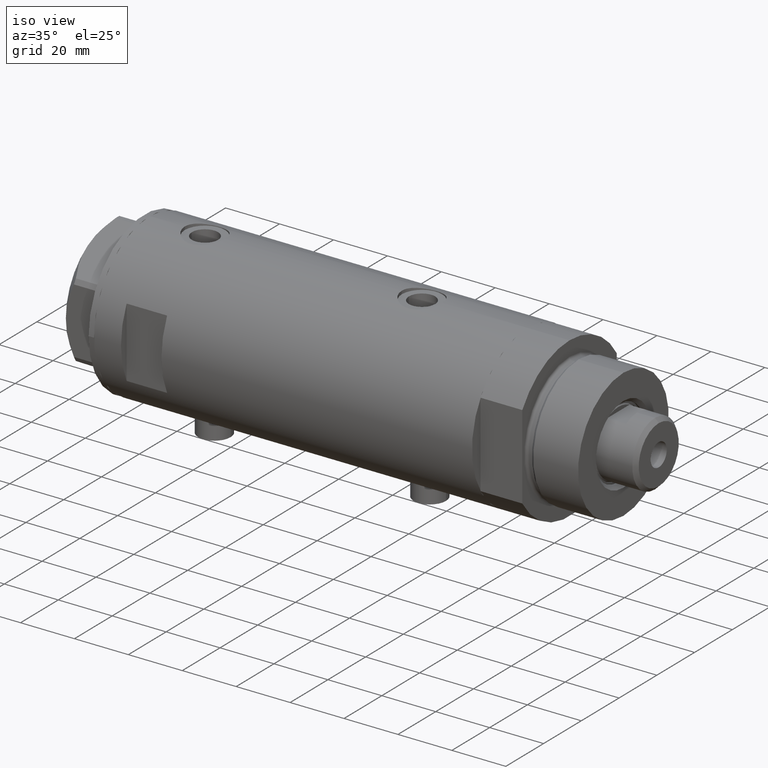
[diagram: clean part render]
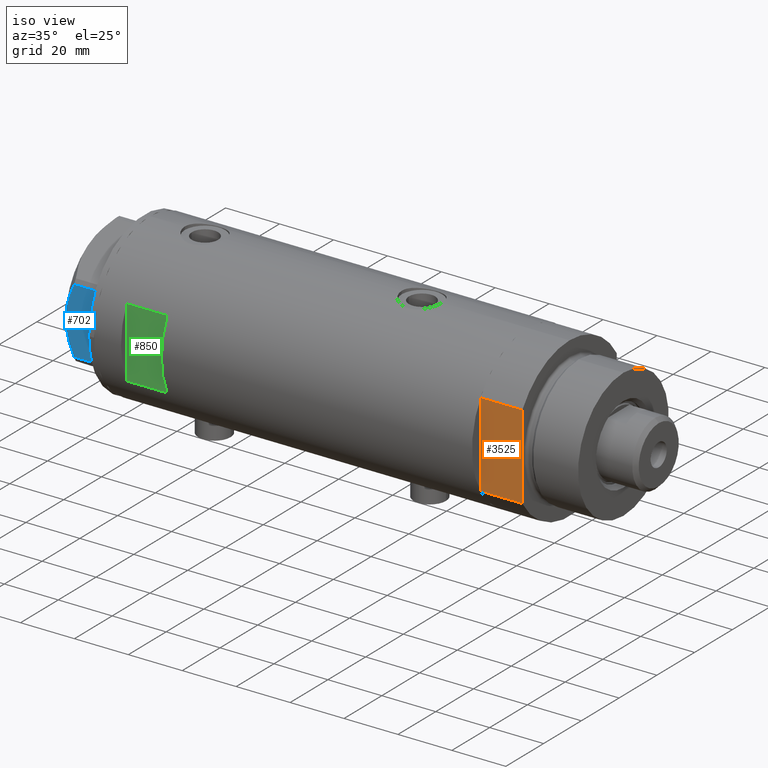
[diagram: same view with three faces highlighted in distinct colors, each labeled with its STEP entity id]
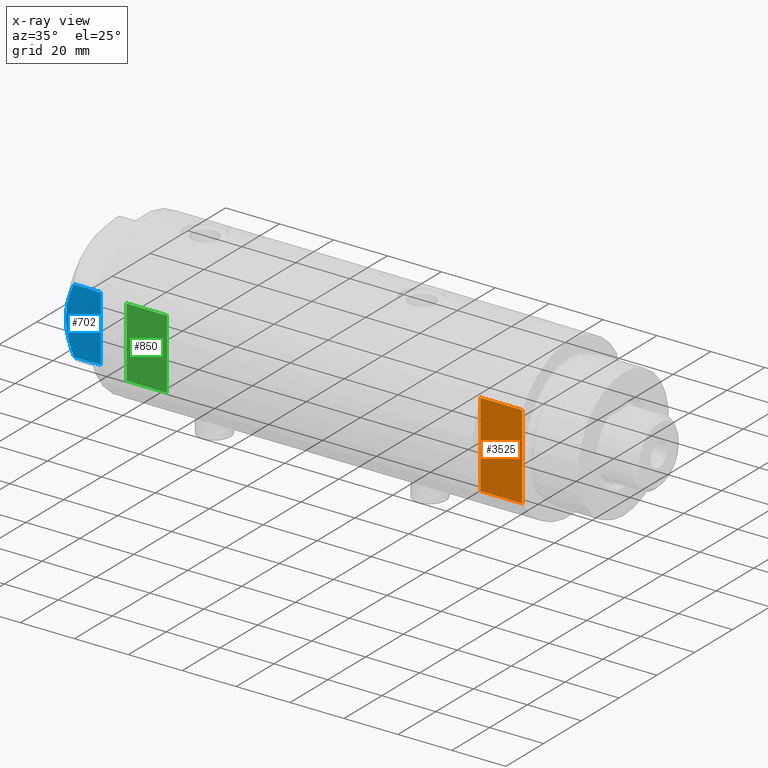
[diagram: x-ray of the same camera — body ghosted, the three highlighted faces saturated]
A machine part, iso view with three faces highlighted in distinct colors.
The next image is the same camera in x-ray (body ghosted, the three faces saturated) — at least one of them is partly hidden behind the body in this view.
Their STEP definitions:

[orange] entity #3525 — the highlighted planar face has unit normal (-0, 1, 0).
#125 = CARTESIAN_POINT ( 'NONE',  ( -7.141428428542853091, -25.00000000000000000, 0.000000000000000000 ) ) ;
#235 = ORIENTED_EDGE ( 'NONE', *, *, #3777, .F. ) ;
#293 = LINE ( 'NONE', #989, #1551 ) ;
#502 = EDGE_CURVE ( 'NONE', #4732, #3638, #293, .T. ) ;
#777 = LINE ( 'NONE', #2248, #3410 ) ;
#790 = VERTEX_POINT ( 'NONE', #3044 ) ;
#884 = DIRECTION ( 'NONE',  ( -0.000000000000000000, -0.000000000000000000, 1.000000000000000000 ) ) ;
#946 = DIRECTION ( 'NONE',  ( 0.000000000000000000, -0.000000000000000000, 1.000000000000000000 ) ) ;
#989 = CARTESIAN_POINT ( 'NONE',  ( -15.66045976336583401, -25.00000000000000000, 0.000000000000000000 ) ) ;
#1026 = ORIENTED_EDGE ( 'NONE', *, *, #3677, .T. ) ;
#1147 = DIRECTION ( 'NONE',  ( -1.000000000000000000, -0.000000000000000000, -0.000000000000000000 ) ) ;
#1428 = CARTESIAN_POINT ( 'NONE',  ( -15.66045976336583401, -25.00000000000000000, 0.000000000000000000 ) ) ;
#1490 = ORIENTED_EDGE ( 'NONE', *, *, #502, .F. ) ;
#1500 = VECTOR ( 'NONE', #884, 1000.000000000000000 ) ;
#1551 = VECTOR ( 'NONE', #4277, 1000.000000000000000 ) ;
#1714 = CARTESIAN_POINT ( 'NONE',  ( -15.66045976336582690, -25.00000000000000000, 0.000000000000000000 ) ) ;
#1752 = VERTEX_POINT ( 'NONE', #125 ) ;
#1764 = ORIENTED_EDGE ( 'NONE', *, *, #2679, .F. ) ;
#1886 = CARTESIAN_POINT ( 'NONE',  ( -15.66045976336583401, -25.00000000000000000, 15.50000000000000000 ) ) ;
#2079 = LINE ( 'NONE', #4254, #1500 ) ;
#2112 = DIRECTION ( 'NONE',  ( -0.000000000000000000, 1.000000000000000000, 0.000000000000000000 ) ) ;
#2154 = CARTESIAN_POINT ( 'NONE',  ( 15.66045976336583045, -25.00000000000000000, 15.50000000000000000 ) ) ;
#2202 = VECTOR ( 'NONE', #3283, 1000.000000000000000 ) ;
#2248 = CARTESIAN_POINT ( 'NONE',  ( -15.66045976336583401, -25.00000000000000000, 0.000000000000000000 ) ) ;
#2389 = EDGE_CURVE ( 'NONE', #790, #1752, #3372, .T. ) ;
#2473 = CARTESIAN_POINT ( 'NONE',  ( -15.66045976336583401, -25.00000000000000000, 0.000000000000000000 ) ) ;
#2479 = ORIENTED_EDGE ( 'NONE', *, *, #2586, .T. ) ;
#2540 = LINE ( 'NONE', #1886, #3346 ) ;
#2584 = VECTOR ( 'NONE', #3701, 1000.000000000000000 ) ;
#2586 = EDGE_CURVE ( 'NONE', #2942, #2785, #2079, .T. ) ;
#2679 = EDGE_CURVE ( 'NONE', #2942, #790, #2745, .T. ) ;
#2745 = LINE ( 'NONE', #1428, #2202 ) ;
#2785 = VERTEX_POINT ( 'NONE', #2154 ) ;
#2942 = VERTEX_POINT ( 'NONE', #3204 ) ;
#2974 = CARTESIAN_POINT ( 'NONE',  ( -15.66045976336583401, -25.00000000000000000, 0.000000000000000000 ) ) ;
#3044 = CARTESIAN_POINT ( 'NONE',  ( 7.141428428542853091, -25.00000000000000000, 0.000000000000000000 ) ) ;
#3113 = AXIS2_PLACEMENT_3D ( 'NONE', #2473, #2112, #946 ) ;
#3169 = FACE_OUTER_BOUND ( 'NONE', #3625, .T. ) ;
#3204 = CARTESIAN_POINT ( 'NONE',  ( 15.66045976336583401, -25.00000000000000000, 0.000000000000000000 ) ) ;
#3283 = DIRECTION ( 'NONE',  ( -1.000000000000000000, -0.000000000000000000, -0.000000000000000000 ) ) ;
#3346 = VECTOR ( 'NONE', #3358, 1000.000000000000000 ) ;
#3358 = DIRECTION ( 'NONE',  ( -1.000000000000000000, -0.000000000000000000, -0.000000000000000000 ) ) ;
#3372 = LINE ( 'NONE', #2974, #2584 ) ;
#3410 = VECTOR ( 'NONE', #1147, 1000.000000000000000 ) ;
#3525 = ADVANCED_FACE ( 'NONE', ( #3169 ), #3930, .F. ) ;
#3557 = CARTESIAN_POINT ( 'NONE',  ( -15.66045976336583045, -25.00000000000000000, 15.50000000000000000 ) ) ;
#3625 = EDGE_LOOP ( 'NONE', ( #1026, #1490, #235, #3852, #1764, #2479 ) ) ;
#3638 = VERTEX_POINT ( 'NONE', #3557 ) ;
#3677 = EDGE_CURVE ( 'NONE', #2785, #3638, #2540, .T. ) ;
#3701 = DIRECTION ( 'NONE',  ( -1.000000000000000000, -0.000000000000000000, -0.000000000000000000 ) ) ;
#3777 = EDGE_CURVE ( 'NONE', #1752, #4732, #777, .T. ) ;
#3852 = ORIENTED_EDGE ( 'NONE', *, *, #2389, .F. ) ;
#3930 = PLANE ( 'NONE',  #3113 ) ;
#4254 = CARTESIAN_POINT ( 'NONE',  ( 15.66045976336583401, -25.00000000000000000, 0.000000000000000000 ) ) ;
#4277 = DIRECTION ( 'NONE',  ( -0.000000000000000000, -0.000000000000000000, 1.000000000000000000 ) ) ;
#4732 = VERTEX_POINT ( 'NONE', #1714 ) ;

[blue] entity #702 — the highlighted planar face has unit normal (-0, 1, -0).
#73 = CARTESIAN_POINT ( 'NONE',  ( -22.99999999999992895, -4.203926054641974552, 12.64168122312250553 ) ) ;
#89 = CARTESIAN_POINT ( 'NONE',  ( -22.99999999999996447, 4.194757081058973824, 12.70300035152520302 ) ) ;
#115 = CARTESIAN_POINT ( 'NONE',  ( -23.00000000000004619, -8.112498833180673323E-14, 13.00000000000000000 ) ) ;
#120 = CARTESIAN_POINT ( 'NONE',  ( -22.99999999999992184, -8.252113629125281236, 11.58164206268022234 ) ) ;
#175 = CARTESIAN_POINT ( 'NONE',  ( -22.99999999999993250, -5.228918809624134134, 12.43333703384985611 ) ) ;
#207 = VERTEX_POINT ( 'NONE', #3268 ) ;
#382 = CARTESIAN_POINT ( 'NONE',  ( -22.99999999999999645, 13.27905619136132032, 0.000000000000000000 ) ) ;
#607 = EDGE_CURVE ( 'NONE', #2733, #2343, #1084, .T. ) ;
#684 = ORIENTED_EDGE ( 'NONE', *, *, #3882, .T. ) ;
#689 = DIRECTION ( 'NONE',  ( 0.000000000000000000, 0.000000000000000000, 1.000000000000000000 ) ) ;
#702 = ADVANCED_FACE ( 'NONE', ( #2554 ), #2940, .F. ) ;
#717 = DIRECTION ( 'NONE',  ( -3.527173405730720929E-15, 1.000000000000000000, 0.000000000000000000 ) ) ;
#801 = EDGE_CURVE ( 'NONE', #3947, #1799, #4102, .T. ) ;
#845 = CARTESIAN_POINT ( 'NONE',  ( -22.99999999999993250, -2.119709279061928964, 12.90853521217319688 ) ) ;
#901 = CARTESIAN_POINT ( 'NONE',  ( -22.99999999999990763, -12.15905619136149340, 9.983800287807616414 ) ) ;
#909 = ORIENTED_EDGE ( 'NONE', *, *, #3462, .F. ) ;
#1008 = CARTESIAN_POINT ( 'NONE',  ( -22.99999999999990763, -12.15905619136148985, 13.00000000000000000 ) ) ;
#1084 = LINE ( 'NONE', #382, #1331 ) ;
#1214 = CARTESIAN_POINT ( 'NONE',  ( -22.99999999999991829, -9.734726261263313418, 11.02892470009565251 ) ) ;
#1250 = DIRECTION ( 'NONE',  ( 0.000000000000000000, 0.000000000000000000, -1.000000000000000000 ) ) ;
#1268 = CARTESIAN_POINT ( 'NONE',  ( -22.99999999999994316, -2.643615312305168441, 12.85430456063626714 ) ) ;
#1325 = CARTESIAN_POINT ( 'NONE',  ( -22.99999999999990763, -12.15905619136149340, 9.983800287807616414 ) ) ;
#1331 = VECTOR ( 'NONE', #4120, 1000.000000000000000 ) ;
#1487 = CARTESIAN_POINT ( 'NONE',  ( -22.99999999999999645, 13.27905619136132032, 13.00000000000000000 ) ) ;
#1567 = CARTESIAN_POINT ( 'NONE',  ( -22.99999999999998579, 11.20825071633914582, 10.42817330637845430 ) ) ;
#1594 = CARTESIAN_POINT ( 'NONE',  ( -22.99999999999991473, -11.68282849742337248, 10.20637235269541776 ) ) ;
#1614 = CARTESIAN_POINT ( 'NONE',  ( -22.99999999999997513, 7.239756182922193695, 11.89218606342285156 ) ) ;
#1799 = VERTEX_POINT ( 'NONE', #1325 ) ;
#1810 = ORIENTED_EDGE ( 'NONE', *, *, #3116, .T. ) ;
#1928 = CARTESIAN_POINT ( 'NONE',  ( -22.99999999999997513, 8.246028007352348865, 11.57113180864690705 ) ) ;
#2266 = VECTOR ( 'NONE', #1250, 1000.000000000000000 ) ;
#2343 = VERTEX_POINT ( 'NONE', #2991 ) ;
#2461 = EDGE_LOOP ( 'NONE', ( #909, #684, #3432, #1810, #3612 ) ) ;
#2554 = FACE_OUTER_BOUND ( 'NONE', #2461, .T. ) ;
#2733 = VERTEX_POINT ( 'NONE', #4040 ) ;
#2747 = LINE ( 'NONE', #3033, #2266 ) ;
#2753 = CARTESIAN_POINT ( 'NONE',  ( -22.99999999999999289, 12.15905619136132110, 9.983800287807621743 ) ) ;
#2940 = PLANE ( 'NONE',  #3103 ) ;
#2991 = CARTESIAN_POINT ( 'NONE',  ( -22.99999999999990763, -12.15905619136148985, 0.000000000000000000 ) ) ;
#3011 = CARTESIAN_POINT ( 'NONE',  ( -23.00000000000004619, -8.112498833180673323E-14, 13.00000000000000000 ) ) ;
#3033 = CARTESIAN_POINT ( 'NONE',  ( -22.99999999999999289, 12.15905619136131754, 13.00000000000000000 ) ) ;
#3036 = VECTOR ( 'NONE', #689, 1000.000000000000000 ) ;
#3039 = CARTESIAN_POINT ( 'NONE',  ( -22.99999999999997158, 8.748091966971372813, 11.39681897828457302 ) ) ;
#3096 = CARTESIAN_POINT ( 'NONE',  ( -22.99999999999994316, -1.063773509315741217, 12.98143808360682883 ) ) ;
#3103 = AXIS2_PLACEMENT_3D ( 'NONE', #1487, #4034, #717 ) ;
#3116 = EDGE_CURVE ( 'NONE', #2343, #1799, #3595, .T. ) ;
#3268 = CARTESIAN_POINT ( 'NONE',  ( -22.99999999999999289, 12.15905619136132110, 9.983800287807621743 ) ) ;
#3423 = CARTESIAN_POINT ( 'NONE',  ( -22.99999999999997513, 6.734330413511418811, 12.03938974125266981 ) ) ;
#3430 = CARTESIAN_POINT ( 'NONE',  ( -22.99999999999995381, -0.5295934231897790889, 13.00000000000009237 ) ) ;
#3432 = ORIENTED_EDGE ( 'NONE', *, *, #607, .T. ) ;
#3462 = EDGE_CURVE ( 'NONE', #207, #3947, #3523, .T. ) ;
#3523 = B_SPLINE_CURVE_WITH_KNOTS ( 'NONE', 3,
 ( #2753, #1567, #4542, #3039, #1928, #1614, #3423, #89, #4522, #115 ),
 .UNSPECIFIED., .F., .F.,
 ( 4, 2, 2, 2, 4 ),
 ( 0.03516523594057417712, 0.03831677594541236381, 0.03989254594783145369, 0.04146831595025054357, 0.04777139595992690307 ),
 .UNSPECIFIED. ) ;
#3595 = LINE ( 'NONE', #1008, #3036 ) ;
#3612 = ORIENTED_EDGE ( 'NONE', *, *, #801, .F. ) ;
#3882 = EDGE_CURVE ( 'NONE', #207, #2733, #2747, .T. ) ;
#3947 = VERTEX_POINT ( 'NONE', #3011 ) ;
#4034 = DIRECTION ( 'NONE',  ( 1.000000000000000000, 3.527173405730720929E-15, -0.000000000000000000 ) ) ;
#4040 = CARTESIAN_POINT ( 'NONE',  ( -22.99999999999999289, 12.15905619136131754, 0.000000000000000000 ) ) ;
#4102 = B_SPLINE_CURVE_WITH_KNOTS ( 'NONE', 3,
 ( #4580, #3430, #3096, #845, #1268, #73, #175, #4528, #120, #1214, #4245, #4218, #1594, #901 ),
 .UNSPECIFIED., .F., .F.,
 ( 4, 2, 2, 2, 2, 2, 4 ),
 ( 0.04777139595992690307, 0.04934380568070230455, 0.05091621540147769909, 0.05406103484302849510, 0.05720585428457929111, 0.05877826400535468565, 0.06035067372613008019 ),
 .UNSPECIFIED. ) ;
#4120 = DIRECTION ( 'NONE',  ( 3.527173405730720141E-15, -1.000000000000000000, 0.000000000000000000 ) ) ;
#4218 = CARTESIAN_POINT ( 'NONE',  ( -22.99999999999990763, -11.20155944044818241, 10.42110268263274264 ) ) ;
#4245 = CARTESIAN_POINT ( 'NONE',  ( -22.99999999999991473, -10.22738952213796715, 10.83247031367477398 ) ) ;
#4522 = CARTESIAN_POINT ( 'NONE',  ( -22.99999999999996092, 2.122900714018063795, 13.00000000000009592 ) ) ;
#4528 = CARTESIAN_POINT ( 'NONE',  ( -22.99999999999992184, -7.253003311474400583, 11.90327681034764140 ) ) ;
#4542 = CARTESIAN_POINT ( 'NONE',  ( -22.99999999999998579, 10.23890159976121517, 10.84081242829091707 ) ) ;
#4580 = CARTESIAN_POINT ( 'NONE',  ( -23.00000000000004619, -8.112498833180673323E-14, 13.00000000000000000 ) ) ;

[green] entity #850 — the highlighted planar face has unit normal (-0, 1, 0).
#158 = LINE ( 'NONE', #3108, #2337 ) ;
#172 = ORIENTED_EDGE ( 'NONE', *, *, #1163, .T. ) ;
#511 = VERTEX_POINT ( 'NONE', #693 ) ;
#520 = CARTESIAN_POINT ( 'NONE',  ( -29.50000000000000355, -26.50000000000000355, 45.09999999999998721 ) ) ;
#670 = DIRECTION ( 'NONE',  ( 0.000000000000000000, -0.000000000000000000, 1.000000000000000000 ) ) ;
#691 = VERTEX_POINT ( 'NONE', #1875 ) ;
#693 = CARTESIAN_POINT ( 'NONE',  ( 12.96148139681573319, -26.49999999999998934, 45.09999999999998721 ) ) ;
#850 = ADVANCED_FACE ( 'NONE', ( #3177 ), #1780, .F. ) ;
#852 = DIRECTION ( 'NONE',  ( 1.000000000000000000, -0.000000000000000000, -0.000000000000000000 ) ) ;
#899 = EDGE_LOOP ( 'NONE', ( #172, #2883, #2024, #1134 ) ) ;
#1134 = ORIENTED_EDGE ( 'NONE', *, *, #2664, .F. ) ;
#1141 = CARTESIAN_POINT ( 'NONE',  ( 12.96148139681573319, -26.49999999999998934, 60.09999999999998721 ) ) ;
#1154 = VERTEX_POINT ( 'NONE', #3792 ) ;
#1163 = EDGE_CURVE ( 'NONE', #691, #1154, #4568, .T. ) ;
#1276 = LINE ( 'NONE', #520, #4668 ) ;
#1713 = EDGE_CURVE ( 'NONE', #1154, #511, #1276, .T. ) ;
#1780 = PLANE ( 'NONE',  #4278 ) ;
#1875 = CARTESIAN_POINT ( 'NONE',  ( -12.96148139681573319, -26.49999999999998934, 60.09999999999998721 ) ) ;
#2024 = ORIENTED_EDGE ( 'NONE', *, *, #3561, .T. ) ;
#2194 = VECTOR ( 'NONE', #2809, 1000.000000000000000 ) ;
#2337 = VECTOR ( 'NONE', #4591, 1000.000000000000000 ) ;
#2664 = EDGE_CURVE ( 'NONE', #691, #2871, #158, .T. ) ;
#2724 = CARTESIAN_POINT ( 'NONE',  ( -12.96148139681573319, -26.49999999999999645, -70.09999999999999432 ) ) ;
#2809 = DIRECTION ( 'NONE',  ( 0.000000000000000000, 0.000000000000000000, 1.000000000000000000 ) ) ;
#2871 = VERTEX_POINT ( 'NONE', #1141 ) ;
#2883 = ORIENTED_EDGE ( 'NONE', *, *, #1713, .T. ) ;
#3108 = CARTESIAN_POINT ( 'NONE',  ( -29.50000000000000355, -26.50000000000000355, 60.09999999999998721 ) ) ;
#3177 = FACE_OUTER_BOUND ( 'NONE', #899, .T. ) ;
#3489 = VECTOR ( 'NONE', #3551, 1000.000000000000000 ) ;
#3551 = DIRECTION ( 'NONE',  ( -0.000000000000000000, -0.000000000000000000, -1.000000000000000000 ) ) ;
#3561 = EDGE_CURVE ( 'NONE', #511, #2871, #4003, .T. ) ;
#3587 = CARTESIAN_POINT ( 'NONE',  ( 12.96148139681573319, -26.49999999999999645, -70.09999999999999432 ) ) ;
#3792 = CARTESIAN_POINT ( 'NONE',  ( -12.96148139681573319, -26.49999999999998934, 45.09999999999998721 ) ) ;
#4003 = LINE ( 'NONE', #3587, #2194 ) ;
#4278 = AXIS2_PLACEMENT_3D ( 'NONE', #4659, #4345, #670 ) ;
#4345 = DIRECTION ( 'NONE',  ( 0.000000000000000000, 1.000000000000000000, 0.000000000000000000 ) ) ;
#4568 = LINE ( 'NONE', #2724, #3489 ) ;
#4591 = DIRECTION ( 'NONE',  ( 1.000000000000000000, -0.000000000000000000, -0.000000000000000000 ) ) ;
#4659 = CARTESIAN_POINT ( 'NONE',  ( -29.50000000000000355, -26.50000000000000355, 60.09999999999998721 ) ) ;
#4668 = VECTOR ( 'NONE', #852, 1000.000000000000000 ) ;